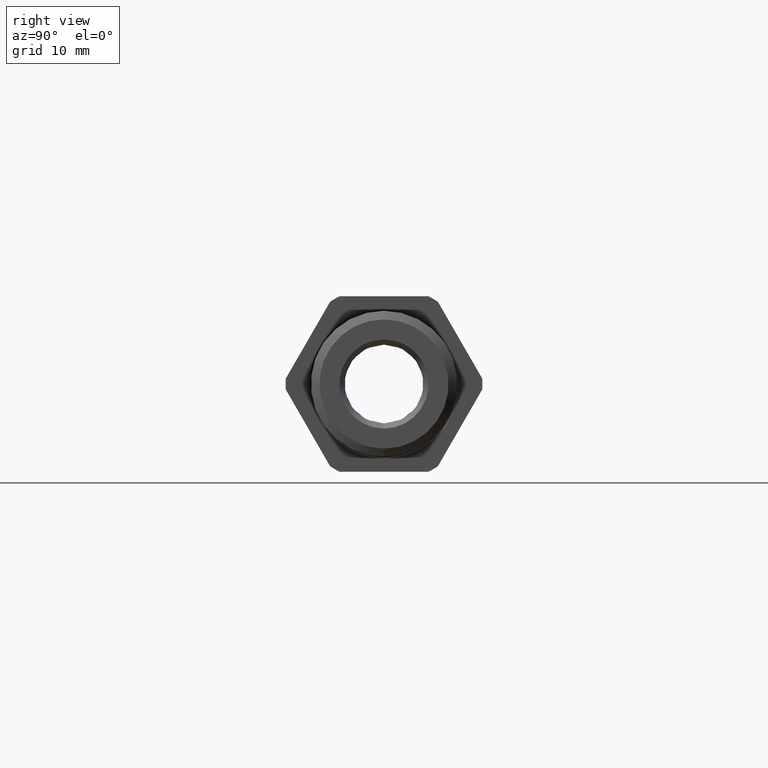
[diagram: clean part render]
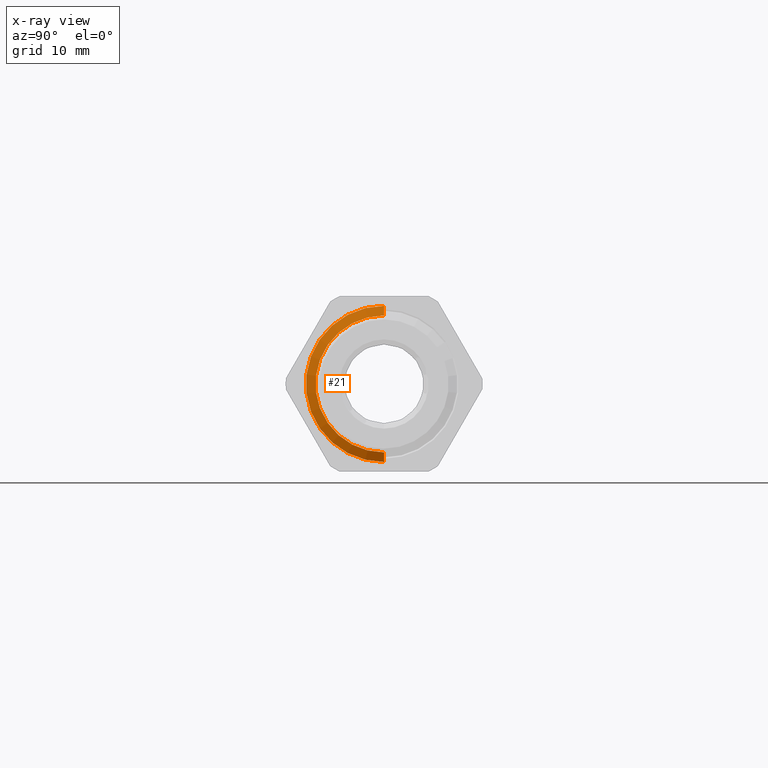
[diagram: x-ray — body ghosted, one internal face saturated and labeled with its STEP entity id]
A machine part, right view, then the same camera in x-ray: the body is ghosted and one INTERNAL B-rep face — a face not visible from any outside direction — is saturated and labeled: STEP entity #21.
In plain terms, the highlighted conical surface has half-angle 60 deg.
Its self-contained STEP definition (entity closure, byte-faithful):
#21 = ADVANCED_FACE ( 'NONE', ( #1409 ), #1408, .T. ) ;
#25 = EDGE_CURVE ( 'NONE', #1268, #1267, #1492, .T. ) ;
#1267 = VERTEX_POINT ( 'NONE', #2769 ) ;
#1268 = VERTEX_POINT ( 'NONE', #2768 ) ;
#1332 = VERTEX_POINT ( 'NONE', #2860 ) ;
#1334 = EDGE_CURVE ( 'NONE', #1268, #1332, #2859, .T. ) ;
#1339 = EDGE_CURVE ( 'NONE', #1267, #1340, #2927, .T. ) ;
#1340 = VERTEX_POINT ( 'NONE', #2923 ) ;
#1400 = DIRECTION ( 'NONE',  ( 0.0000000000000000000, 0.0000000000000000000, 1.000000000000000000 ) ) ;
#1401 = DIRECTION ( 'NONE',  ( -1.000000000000000000, 0.0000000000000000000, 0.0000000000000000000 ) ) ;
#1402 = CARTESIAN_POINT ( 'NONE',  ( -0.1558333333333333000, 0.0000000000000000000, 0.0000000000000000000 ) ) ;
#1403 = AXIS2_PLACEMENT_3D ( 'NONE', #1402, #1401, #1400 ) ;
#1408 = CONICAL_SURFACE ( 'NONE', #1403, 0.3869000000000000200, 1.047197551196604300 ) ;
#1409 = FACE_OUTER_BOUND ( 'NONE', #10862, .T. ) ;
#1488 = DIRECTION ( 'NONE',  ( 0.0000000000000000000, 0.0000000000000000000, -1.000000000000000000 ) ) ;
#1489 = DIRECTION ( 'NONE',  ( 1.000000000000000000, 0.0000000000000000000, 0.0000000000000000000 ) ) ;
#1490 = CARTESIAN_POINT ( 'NONE',  ( -0.1283333461552116600, 0.0000000000000000000, 0.0000000000000000000 ) ) ;
#1491 = AXIS2_PLACEMENT_3D ( 'NONE', #1490, #1489, #1488 ) ;
#1492 = CIRCLE ( 'NONE', #1491, 0.3392686249999999900 ) ;
#2768 = CARTESIAN_POINT ( 'NONE',  ( -0.1283333461552116600, 4.446500411237423700E-017, 0.3392686249999999900 ) ) ;
#2769 = CARTESIAN_POINT ( 'NONE',  ( -0.1283333461552116600, 0.0000000000000000000, -0.3392686249999999900 ) ) ;
#2858 = CARTESIAN_POINT ( 'NONE',  ( -0.1558333333333333000, 0.0000000000000000000, 0.3869000000000000200 ) ) ;
#2859 = LINE ( 'NONE', #2858, #2930 ) ;
#2860 = CARTESIAN_POINT ( 'NONE',  ( -0.1558333333333333000, 0.0000000000000000000, 0.3869000000000000200 ) ) ;
#2923 = CARTESIAN_POINT ( 'NONE',  ( -0.1558333333333333000, 4.738158465901109900E-017, -0.3869000000000000200 ) ) ;
#2924 = DIRECTION ( 'NONE',  ( -0.4999999999999943400, 1.060575238724910900E-016, -0.8660254037844418200 ) ) ;
#2925 = VECTOR ( 'NONE', #2924, 39.37007874015748100 ) ;
#2926 = CARTESIAN_POINT ( 'NONE',  ( -0.1558333333333333000, 4.738158465901109900E-017, -0.3869000000000000200 ) ) ;
#2927 = LINE ( 'NONE', #2926, #2925 ) ;
#2929 = DIRECTION ( 'NONE',  ( -0.4999999999999943400, 0.0000000000000000000, 0.8660254037844418200 ) ) ;
#2930 = VECTOR ( 'NONE', #2929, 39.37007874015748100 ) ;
#3539 = EDGE_CURVE ( 'NONE', #1332, #1340, #4252, .T. ) ;
#4247 = DIRECTION ( 'NONE',  ( 0.0000000000000000000, 0.0000000000000000000, -1.000000000000000000 ) ) ;
#4248 = DIRECTION ( 'NONE',  ( 1.000000000000000000, 0.0000000000000000000, 0.0000000000000000000 ) ) ;
#4250 = AXIS2_PLACEMENT_3D ( 'NONE', #4267, #4248, #4247 ) ;
#4252 = CIRCLE ( 'NONE', #4250, 0.3869000000000000200 ) ;
#4267 = CARTESIAN_POINT ( 'NONE',  ( -0.1558333333333333000, 0.0000000000000000000, 0.0000000000000000000 ) ) ;
#10850 = ORIENTED_EDGE ( 'NONE', *, *, #1334, .T. ) ;
#10851 = ORIENTED_EDGE ( 'NONE', *, *, #3539, .T. ) ;
#10860 = ORIENTED_EDGE ( 'NONE', *, *, #25, .F. ) ;
#10862 = EDGE_LOOP ( 'NONE', ( #10879, #10860, #10850, #10851 ) ) ;
#10879 = ORIENTED_EDGE ( 'NONE', *, *, #1339, .F. ) ;